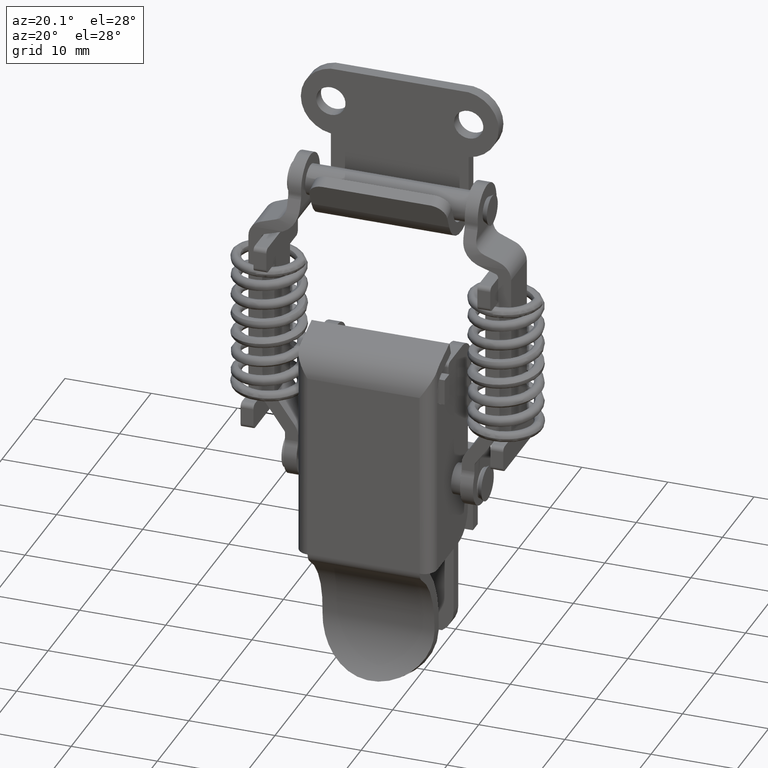
[diagram: clean part render]
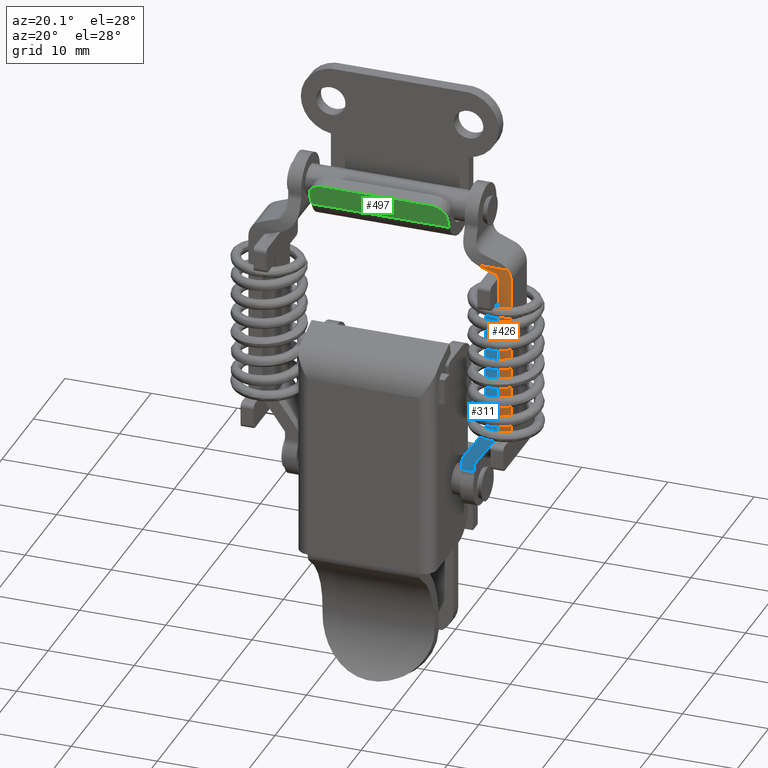
[diagram: same view with three faces highlighted in distinct colors, each labeled with its STEP entity id]
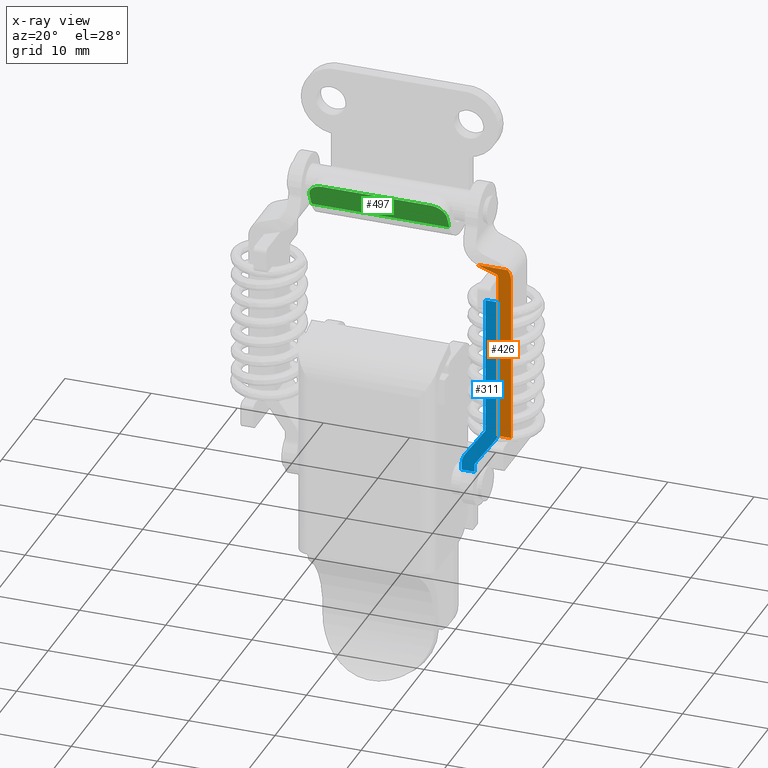
[diagram: x-ray of the same camera — body ghosted, the three highlighted faces saturated]
A machine part, auxiliary view with three faces highlighted in distinct colors.
The next image is the same camera in x-ray (body ghosted, the three faces saturated) — at least one of them is partly hidden behind the body in this view.
Their STEP definitions:

[orange] entity #426 — the highlighted planar face has unit normal (0, -1, -0).
#426=ADVANCED_FACE('',(#2092),#2091,.T.);
#2091=PLANE('',#6081);
#2092=FACE_OUTER_BOUND('',#6082,.T.);
#6078=CARTESIAN_POINT('',(3.99998908001E+00,2.24801335923E+01,-2.75917645721E+00));
#6079=DIRECTION('',(1.00000000000E+00,0.00000000000E+00,1.03910673845E-12));
#6080=DIRECTION('',(1.03910673845E-12,0.00000000000E+00,-1.00000000000E+00));
#6081=AXIS2_PLACEMENT_3D('',#6078,#6079,#6080);
#6082=EDGE_LOOP('',(#7359,#7360,#7361,#7362,#7363,#7364,#7365,#7366));
#7359=ORIENTED_EDGE('',*,*,#8105,.F.);
#7360=ORIENTED_EDGE('',*,*,#8099,.F.);
#7361=ORIENTED_EDGE('',*,*,#8112,.F.);
#7362=ORIENTED_EDGE('',*,*,#8228,.F.);
#7363=ORIENTED_EDGE('',*,*,#8213,.T.);
#7364=ORIENTED_EDGE('',*,*,#8201,.F.);
#7365=ORIENTED_EDGE('',*,*,#8230,.T.);
#7366=ORIENTED_EDGE('',*,*,#8216,.T.);
#8099=EDGE_CURVE('',#10336,#10343,#10344,.T.);
#8105=EDGE_CURVE('',#10343,#10384,#10385,.T.);
#8112=EDGE_CURVE('',#10424,#10336,#10431,.T.);
#8201=EDGE_CURVE('',#11027,#11028,#11029,.T.);
#8213=EDGE_CURVE('',#11111,#11028,#11112,.T.);
#8216=EDGE_CURVE('',#11131,#10384,#11132,.T.);
#8228=EDGE_CURVE('',#11111,#10424,#11213,.T.);
#8230=EDGE_CURVE('',#11027,#11131,#11225,.T.);
#10336=VERTEX_POINT('',#14296);
#10343=VERTEX_POINT('',#14307);
#10344=LINE('',#14308,#14309);
#10384=VERTEX_POINT('',#14337);
#10385=CIRCLE('',#14341,2.00000000000E+00);
#10424=VERTEX_POINT('',#14364);
#10431=CIRCLE('',#14371,3.00000000000E+00);
#11027=VERTEX_POINT('',#14756);
#11028=VERTEX_POINT('',#14757);
#11029=LINE('',#14758,#14759);
#11111=VERTEX_POINT('',#14808);
#11112=CIRCLE('',#14812,5.00000000000E-01);
#11131=VERTEX_POINT('',#14821);
#11132=LINE('',#14822,#14823);
#11213=LINE('',#14871,#14872);
#11225=LINE('',#14877,#14878);
#14296=CARTESIAN_POINT('',(3.99998908001E+00,2.28773941749E+01,-4.82652405201E+00));
#14307=CARTESIAN_POINT('',(3.99998908001E+00,2.64649469522E+01,-4.82652405201E+00));
#14308=CARTESIAN_POINT('',(3.99998908001E+00,2.28773941749E+01,-4.82652405201E+00));
#14309=VECTOR('',#14310,3.58755277733E+00);
#14310=DIRECTION('',(0.00000000000E+00,1.00000000000E+00,0.00000000000E+00));
#14337=CARTESIAN_POINT('',(3.99998908001E+00,2.68500000000E+01,-6.00633180821E+00));
#14338=CARTESIAN_POINT('',(3.99998908001E+00,2.48500000000E+01,-6.00633180821E+00));
#14339=DIRECTION('',(-1.00000000000E+00,0.00000000000E+00,-1.03910673845E-12));
#14340=DIRECTION('',(-1.03910673845E-12,-0.00000000000E+00,1.00000000000E+00));
#14341=AXIS2_PLACEMENT_3D('',#14338,#14339,#14340);
#14364=CARTESIAN_POINT('',(3.99998908001E+00,2.31792121376E+01,-4.94215262162E+00));
#14368=CARTESIAN_POINT('',(3.99998908001E+00,2.41000000000E+01,-2.08695565602E+00));
#14369=DIRECTION('',(-1.00000000000E+00,0.00000000000E+00,-1.03910673845E-12));
#14370=DIRECTION('',(-1.03910673845E-12,-0.00000000000E+00,1.00000000000E+00));
#14371=AXIS2_PLACEMENT_3D('',#14368,#14369,#14370);
#14756=CARTESIAN_POINT('',(3.99998908003E+00,2.53500000000E+01,-2.55000000000E+01));
#14757=CARTESIAN_POINT('',(3.99998908001E+00,2.53500000000E+01,-6.00633180821E+00));
#14758=CARTESIAN_POINT('',(3.99998908003E+00,2.53500000000E+01,-2.55000000000E+01));
#14759=VECTOR('',#14760,1.94936681918E+01);
#14760=DIRECTION('',(-1.03911900673E-12,0.00000000000E+00,1.00000000000E+00));
#14808=CARTESIAN_POINT('',(3.99998908001E+00,2.50034646437E+01,-5.53046564728E+00));
#14809=CARTESIAN_POINT('',(3.99998908001E+00,2.48500000000E+01,-6.00633180821E+00));
#14810=DIRECTION('',(-1.00000000000E+00,0.00000000000E+00,-1.03910673845E-12));
#14811=DIRECTION('',(-1.03910673845E-12,-0.00000000000E+00,1.00000000000E+00));
#14812=AXIS2_PLACEMENT_3D('',#14809,#14810,#14811);
#14821=CARTESIAN_POINT('',(3.99998908003E+00,2.68500000000E+01,-2.55000000000E+01));
#14822=CARTESIAN_POINT('',(3.99998908003E+00,2.68500000000E+01,-2.55000000000E+01));
#14823=VECTOR('',#14824,1.94936681918E+01);
#14824=DIRECTION('',(-1.03909622552E-12,0.00000000000E+00,1.00000000000E+00));
#14871=CARTESIAN_POINT('',(3.99998908001E+00,2.50034646437E+01,-5.53046564728E+00));
#14872=VECTOR('',#14873,1.91677057114E+00);
#14873=DIRECTION('',(-3.19031839892E-13,-9.51732321869E-01,3.06929287475E-01));
#14877=CARTESIAN_POINT('',(3.99998908003E+00,2.53500000000E+01,-2.55000000000E+01));
#14878=VECTOR('',#14879,1.50000000000E+00);
#14879=DIRECTION('',(0.00000000000E+00,1.00000000000E+00,0.00000000000E+00));

[blue] entity #311 — the highlighted planar face has unit normal (0, -1, 0).
#311=ADVANCED_FACE('',(#934),#933,.T.);
#933=PLANE('',#3146);
#934=FACE_OUTER_BOUND('',#3147,.T.);
#3143=CARTESIAN_POINT('',(2.06750000000E+01,-2.50000000000E+00,2.61438447187E+01));
#3144=DIRECTION('',(0.00000000000E+00,-1.00000000000E+00,0.00000000000E+00));
#3145=DIRECTION('',(0.00000000000E+00,0.00000000000E+00,-1.00000000000E+00));
#3146=AXIS2_PLACEMENT_3D('',#3143,#3144,#3145);
#3147=EDGE_LOOP('',(#6760,#6761,#6762,#6763,#6764,#6765,#6766,#6767,#6768,#6769,#6770));
#6760=ORIENTED_EDGE('',*,*,#7905,.F.);
#6761=ORIENTED_EDGE('',*,*,#7899,.T.);
#6762=ORIENTED_EDGE('',*,*,#7951,.F.);
#6763=ORIENTED_EDGE('',*,*,#7938,.F.);
#6764=ORIENTED_EDGE('',*,*,#7932,.F.);
#6765=ORIENTED_EDGE('',*,*,#7929,.F.);
#6766=ORIENTED_EDGE('',*,*,#7924,.F.);
#6767=ORIENTED_EDGE('',*,*,#7950,.T.);
#6768=ORIENTED_EDGE('',*,*,#7914,.F.);
#6769=ORIENTED_EDGE('',*,*,#7910,.T.);
#6770=ORIENTED_EDGE('',*,*,#7908,.F.);
#7899=EDGE_CURVE('',#9015,#9008,#9016,.T.);
#7905=EDGE_CURVE('',#9015,#9056,#9057,.T.);
#7908=EDGE_CURVE('',#9056,#9076,#9077,.T.);
#7910=EDGE_CURVE('',#9089,#9076,#9090,.T.);
#7914=EDGE_CURVE('',#9089,#9116,#9117,.T.);
#7924=EDGE_CURVE('',#9179,#9186,#9187,.T.);
#7929=EDGE_CURVE('',#9186,#9220,#9221,.T.);
#7932=EDGE_CURVE('',#9220,#9240,#9241,.T.);
#7938=EDGE_CURVE('',#9240,#9280,#9281,.T.);
#7950=EDGE_CURVE('',#9179,#9116,#9355,.T.);
#7951=EDGE_CURVE('',#9280,#9008,#9361,.T.);
#9008=VERTEX_POINT('',#13096);
#9015=VERTEX_POINT('',#13100);
#9016=LINE('',#13101,#13102);
#9056=VERTEX_POINT('',#13125);
#9057=CIRCLE('',#13129,2.00000000000E+00);
#9076=VERTEX_POINT('',#13137);
#9077=LINE('',#13138,#13139);
#9089=VERTEX_POINT('',#13144);
#9090=CIRCLE('',#13148,5.00000000000E-01);
#9116=VERTEX_POINT('',#13161);
#9117=LINE('',#13162,#13163);
#9179=VERTEX_POINT('',#13204);
#9186=VERTEX_POINT('',#13209);
#9187=LINE('',#13210,#13211);
#9220=VERTEX_POINT('',#13231);
#9221=CIRCLE('',#13235,2.00000000000E+00);
#9240=VERTEX_POINT('',#13243);
#9241=LINE('',#13244,#13245);
#9280=VERTEX_POINT('',#13267);
#9281=LINE('',#13268,#13269);
#9355=LINE('',#13308,#13309);
#9361=LINE('',#13311,#13312);
#13096=CARTESIAN_POINT('',(2.53500000000E+01,-2.50000000000E+00,2.40000000000E+01));
#13100=CARTESIAN_POINT('',(2.53500000000E+01,-2.50000000000E+00,8.00192675389E+00));
#13101=CARTESIAN_POINT('',(2.53500000000E+01,-2.50000000000E+00,8.00192675389E+00));
#13102=VECTOR('',#13103,1.59980732461E+01);
#13103=DIRECTION('',(0.00000000000E+00,0.00000000000E+00,1.00000000000E+00));
#13125=CARTESIAN_POINT('',(2.49775853242E+01,-2.50000000000E+00,6.83961611877E+00));
#13126=CARTESIAN_POINT('',(2.33500000000E+01,-2.50000000000E+00,8.00192675389E+00));
#13127=DIRECTION('',(0.00000000000E+00,1.00000000000E+00,0.00000000000E+00));
#13128=DIRECTION('',(-0.00000000000E+00,-0.00000000000E+00,1.00000000000E+00));
#13129=AXIS2_PLACEMENT_3D('',#13126,#13127,#13128);
#13137=CARTESIAN_POINT('',(2.26931036690E+01,-2.50000000000E+00,3.64065303343E+00));
#13138=CARTESIAN_POINT('',(2.49775853242E+01,-2.50000000000E+00,6.83961611877E+00));
#13139=VECTOR('',#13140,3.93093134696E+00);
#13140=DIRECTION('',(-5.81155317556E-01,0.00000000000E+00,-8.13792662093E-01));
#13144=CARTESIAN_POINT('',(2.26000000000E+01,-2.50000000000E+00,3.35007537465E+00));
#13145=CARTESIAN_POINT('',(2.31000000000E+01,-2.50000000000E+00,3.35007537465E+00));
#13146=DIRECTION('',(0.00000000000E+00,1.00000000000E+00,0.00000000000E+00));
#13147=DIRECTION('',(-0.00000000000E+00,-0.00000000000E+00,1.00000000000E+00));
#13148=AXIS2_PLACEMENT_3D('',#13145,#13146,#13147);
#13161=CARTESIAN_POINT('',(2.26000000000E+01,-2.50000000000E+00,2.56155281281E+00));
#13162=CARTESIAN_POINT('',(2.26000000000E+01,-2.50000000000E+00,3.35007537465E+00));
#13163=VECTOR('',#13164,7.88522561841E-01);
#13164=DIRECTION('',(0.00000000000E+00,0.00000000000E+00,-1.00000000000E+00));
#13204=CARTESIAN_POINT('',(2.11000000000E+01,-2.50000000000E+00,2.56155281281E+00));
#13209=CARTESIAN_POINT('',(2.11000000000E+01,-2.50000000000E+00,3.35007537465E+00));
#13210=CARTESIAN_POINT('',(2.11000000000E+01,-2.50000000000E+00,2.56155281281E+00));
#13211=VECTOR('',#13212,7.88522561841E-01);
#13212=DIRECTION('',(0.00000000000E+00,0.00000000000E+00,1.00000000000E+00));
#13231=CARTESIAN_POINT('',(2.14724146758E+01,-2.50000000000E+00,4.51238600976E+00));
#13232=CARTESIAN_POINT('',(2.31000000000E+01,-2.50000000000E+00,3.35007537465E+00));
#13233=DIRECTION('',(0.00000000000E+00,1.00000000000E+00,0.00000000000E+00));
#13234=DIRECTION('',(-0.00000000000E+00,-0.00000000000E+00,1.00000000000E+00));
#13235=AXIS2_PLACEMENT_3D('',#13232,#13233,#13234);
#13243=CARTESIAN_POINT('',(2.38500000000E+01,-2.50000000000E+00,7.84172230227E+00));
#13244=CARTESIAN_POINT('',(2.14724146758E+01,-2.50000000000E+00,4.51238600976E+00));
#13245=VECTOR('',#13246,4.09113579858E+00);
#13246=DIRECTION('',(5.81155317556E-01,0.00000000000E+00,8.13792662093E-01));
#13267=CARTESIAN_POINT('',(2.38500000000E+01,-2.50000000000E+00,2.40000000000E+01));
#13268=CARTESIAN_POINT('',(2.38500000000E+01,-2.50000000000E+00,7.84172230227E+00));
#13269=VECTOR('',#13270,1.61582776977E+01);
#13270=DIRECTION('',(0.00000000000E+00,0.00000000000E+00,1.00000000000E+00));
#13308=CARTESIAN_POINT('',(2.11000000000E+01,-2.50000000000E+00,2.56155281281E+00));
#13309=VECTOR('',#13310,1.50000000000E+00);
#13310=DIRECTION('',(1.00000000000E+00,0.00000000000E+00,0.00000000000E+00));
#13311=CARTESIAN_POINT('',(2.38500000000E+01,-2.50000000000E+00,2.40000000000E+01));
#13312=VECTOR('',#13313,1.50000000000E+00);
#13313=DIRECTION('',(1.00000000000E+00,0.00000000000E+00,0.00000000000E+00));

[green] entity #497 — the highlighted planar face has unit normal (0, -0.9165, -0.4001).
#497=ADVANCED_FACE('',(#2808),#2807,.T.);
#2807=PLANE('',#6466);
#2808=FACE_OUTER_BOUND('',#6467,.T.);
#6463=CARTESIAN_POINT('',(7.63341038148E+00,-1.60000000000E+00,-1.02388210432E+01));
#6464=DIRECTION('',(9.16474046298E-01,0.00000000000E+00,-4.00094141998E-01));
#6465=DIRECTION('',(-4.00094141998E-01,0.00000000000E+00,-9.16474046298E-01));
#6466=AXIS2_PLACEMENT_3D('',#6463,#6464,#6465);
#6467=EDGE_LOOP('',(#7759,#7760,#7761,#7762,#7763,#7764));
#7759=ORIENTED_EDGE('',*,*,#8424,.T.);
#7760=ORIENTED_EDGE('',*,*,#8415,.T.);
#7761=ORIENTED_EDGE('',*,*,#8446,.T.);
#7762=ORIENTED_EDGE('',*,*,#8419,.T.);
#7763=ORIENTED_EDGE('',*,*,#8430,.F.);
#7764=ORIENTED_EDGE('',*,*,#8445,.F.);
#8415=EDGE_CURVE('',#12445,#12446,#12447,.T.);
#8419=EDGE_CURVE('',#12473,#12474,#12475,.T.);
#8424=EDGE_CURVE('',#12508,#12445,#12509,.T.);
#8430=EDGE_CURVE('',#12549,#12474,#12550,.T.);
#8445=EDGE_CURVE('',#12508,#12549,#12651,.T.);
#8446=EDGE_CURVE('',#12446,#12473,#12657,.T.);
#12445=VERTEX_POINT('',#15679);
#12446=VERTEX_POINT('',#15680);
#12447=(BOUNDED_CURVE() B_SPLINE_CURVE(2,(#15681,#15682,#15683),.UNSPECIFIED.,.F.,.F.) B_SPLINE_CURVE_WITH_KNOTS((3,3),(1.57079632679E+00,3.14159265359E+00),.UNSPECIFIED.) CURVE() GEOMETRIC_REPRESENTATION_ITEM() RATIONAL_B_SPLINE_CURVE((1.00000000000E+00,7.07106781187E-01,1.00000000000E+00)) REPRESENTATION_ITEM('') );
#12473=VERTEX_POINT('',#15695);
#12474=VERTEX_POINT('',#15696);
#12475=(BOUNDED_CURVE() B_SPLINE_CURVE(2,(#15697,#15698,#15699),.UNSPECIFIED.,.F.,.F.) B_SPLINE_CURVE_WITH_KNOTS((3,3),(-1.15463194561E-14,1.57079632679E+00),.UNSPECIFIED.) CURVE() GEOMETRIC_REPRESENTATION_ITEM() RATIONAL_B_SPLINE_CURVE((1.00000000000E+00,7.07106781187E-01,1.00000000000E+00)) REPRESENTATION_ITEM('') );
#12508=VERTEX_POINT('',#15715);
#12509=LINE('',#15716,#15717);
#12549=VERTEX_POINT('',#15740);
#12550=LINE('',#15741,#15742);
#12651=LINE('',#15805,#15806);
#12657=LINE('',#15808,#15809);
#15679=CARTESIAN_POINT('',(6.79920698931E+00,1.60000000000E+01,-1.21496857073E+01));
#15680=CARTESIAN_POINT('',(7.50000000000E+00,1.42500000000E+01,-1.05444170000E+01));
#15681=CARTESIAN_POINT('',(6.79920698931E+00,1.60000000000E+01,-1.21496857073E+01));
#15682=CARTESIAN_POINT('',(7.50000000000E+00,1.60000000000E+01,-1.05444170000E+01));
#15683=CARTESIAN_POINT('',(7.50000000000E+00,1.42500000000E+01,-1.05444170000E+01));
#15695=CARTESIAN_POINT('',(7.50000000000E+00,1.75000000000E+00,-1.05444170000E+01));
#15696=CARTESIAN_POINT('',(6.79920698931E+00,2.27373675443E-13,-1.21496857073E+01));
#15697=CARTESIAN_POINT('',(7.50000000000E+00,1.75000000000E+00,-1.05444170000E+01));
#15698=CARTESIAN_POINT('',(7.50000000000E+00,2.28981564206E-13,-1.05444170000E+01));
#15699=CARTESIAN_POINT('',(6.79920698931E+00,2.28927987678E-13,-1.21496857073E+01));
#15715=CARTESIAN_POINT('',(6.16589618519E+00,1.60000000000E+01,-1.36003765680E+01));
#15716=CARTESIAN_POINT('',(6.16589618519E+00,1.60000000000E+01,-1.36003765680E+01));
#15717=VECTOR('',#15718,1.58290446581E+00);
#15718=DIRECTION('',(4.00094141998E-01,0.00000000000E+00,9.16474046298E-01));
#15740=CARTESIAN_POINT('',(6.16589618519E+00,2.22044604925E-13,-1.36003765680E+01));
#15741=CARTESIAN_POINT('',(6.16589618519E+00,2.27373675443E-13,-1.36003765680E+01));
#15742=VECTOR('',#15743,1.58290446581E+00);
#15743=DIRECTION('',(4.00094141998E-01,0.00000000000E+00,9.16474046298E-01));
#15805=CARTESIAN_POINT('',(6.16589618519E+00,1.60000000000E+01,-1.36003765680E+01));
#15806=VECTOR('',#15807,1.60000000000E+01);
#15807=DIRECTION('',(0.00000000000E+00,-1.00000000000E+00,0.00000000000E+00));
#15808=CARTESIAN_POINT('',(7.50000000000E+00,1.42500000000E+01,-1.05444170000E+01));
#15809=VECTOR('',#15810,1.25000000000E+01);
#15810=DIRECTION('',(0.00000000000E+00,-1.00000000000E+00,0.00000000000E+00));